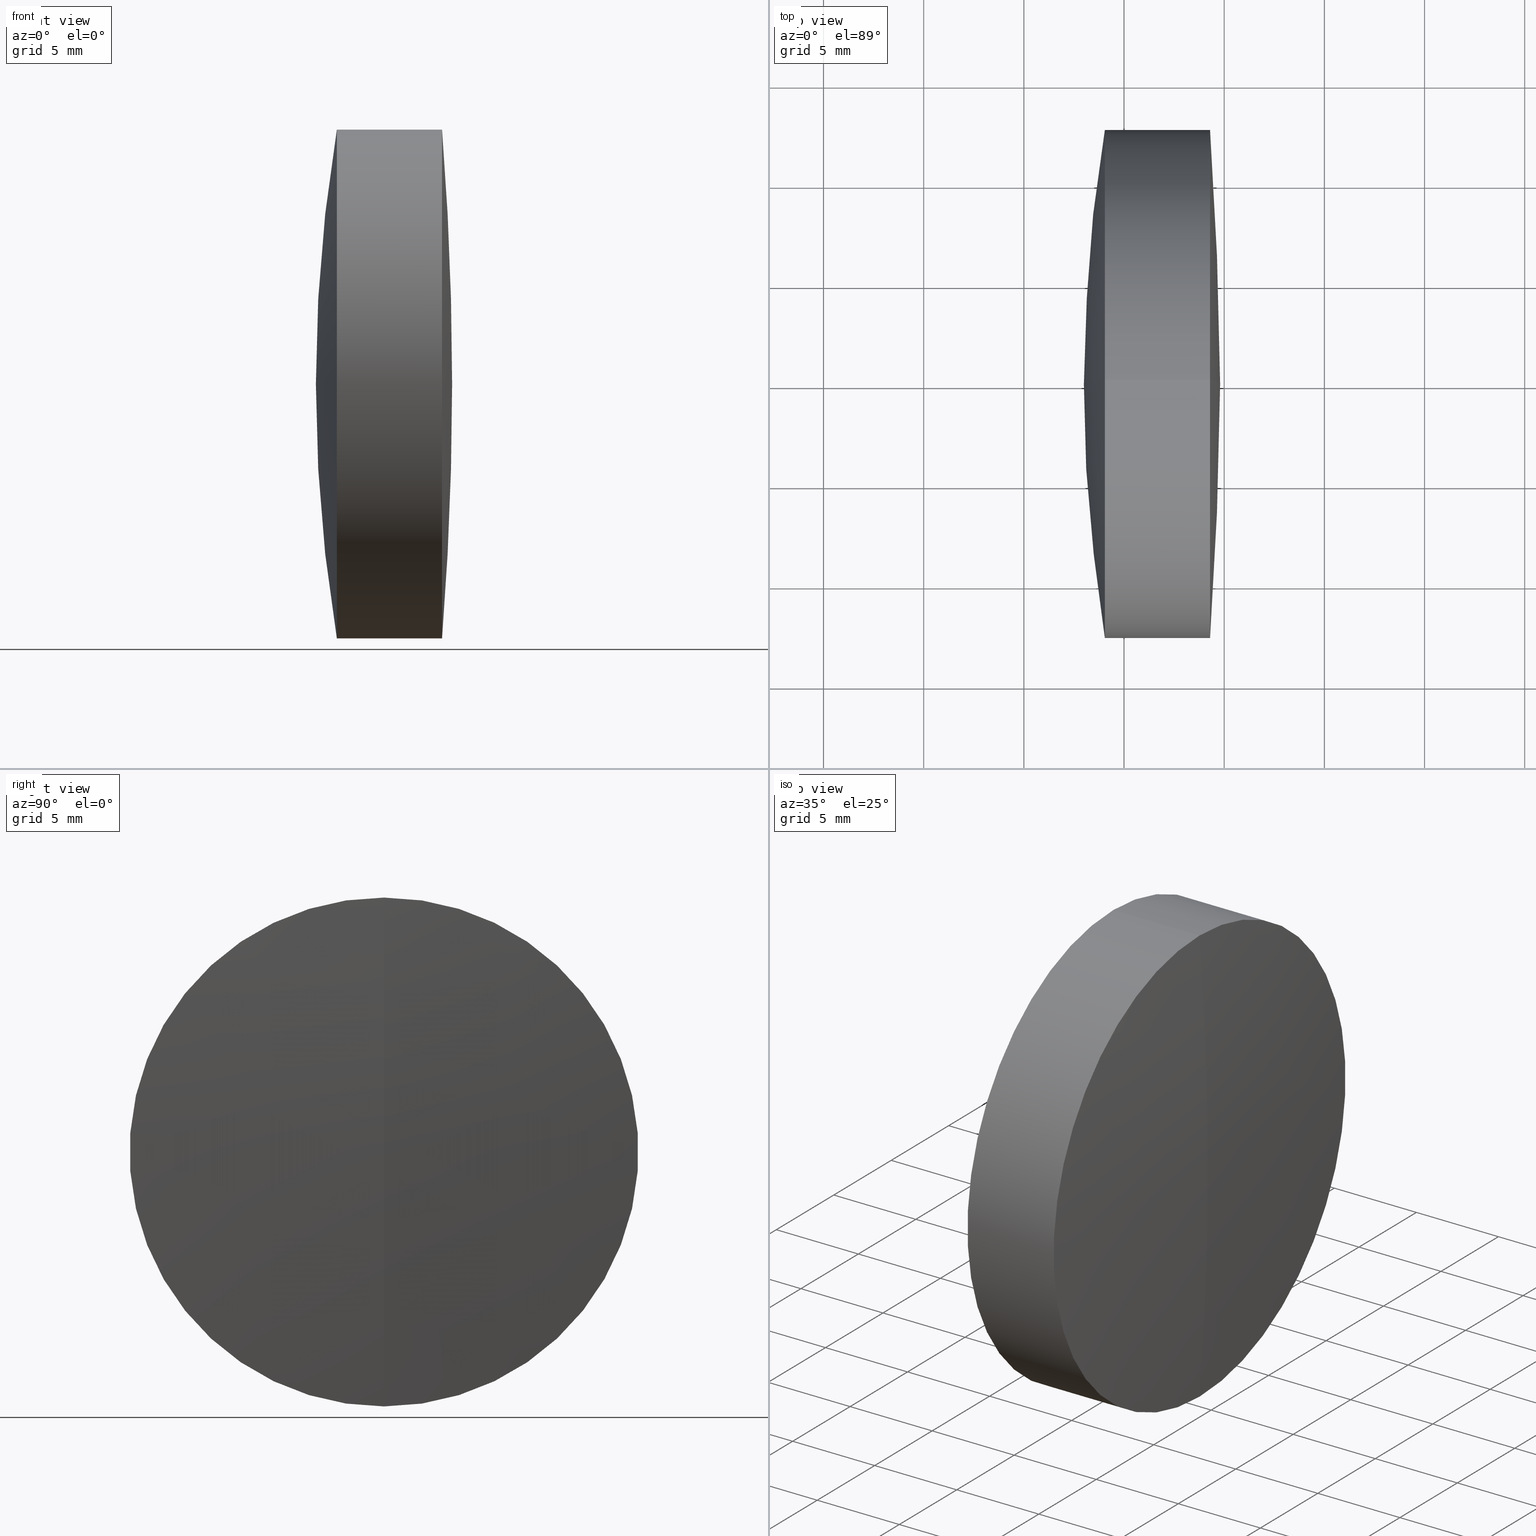
[diagram: canonical four-view strip — front | top / right | iso, engineering-drawing reading convention]
A machine part, canonical four-view strip (front | top / right | iso — engineering-drawing reading convention). The complete STEP part file that produces these views, byte-faithful:
ISO-10303-21;
HEADER;
FILE_DESCRIPTION (( 'STEP AP214' ),
    '1' );
FILE_NAME ('145059.STEP',
    '2019-05-14T03:18:45',
    ( 'user' ),
    ( '΢���й�' ),
    'SwSTEP 2.0',
    'SolidWorks 2016',
    '' );
FILE_SCHEMA (( 'AUTOMOTIVE_DESIGN' ));
ENDSEC;

DATA;
#1 = CARTESIAN_POINT ( 'NONE',  ( 340.5958458084193700, 0.0000000000000000000, -4.289825097912383600E-015 ) ) ;
#2 = DIRECTION ( 'NONE',  ( 0.0000000000000000000, 0.0000000000000000000, 1.000000000000000000 ) ) ;
#3 = SURFACE_STYLE_FILL_AREA ( #310 ) ;
#4 = AXIS2_PLACEMENT_3D ( 'NONE', #15, #67, #40 ) ;
#5 = FACE_OUTER_BOUND ( 'NONE', #44, .T. ) ;
#6 = ORIENTED_EDGE ( 'NONE', *, *, #24, .F. ) ;
#7 = DIRECTION ( 'NONE',  ( -0.0000000000000000000, 1.000000000000000000, 1.224646799147353200E-016 ) ) ;
#8 = EDGE_CURVE ( 'NONE', #170, #106, #56, .T. ) ;
#9 = ORIENTED_EDGE ( 'NONE', *, *, #8, .T. ) ;
#10 = DIRECTION ( 'NONE',  ( -1.000000000000000000, -0.0000000000000000000, -0.0000000000000000000 ) ) ;
#11 = AXIS2_PLACEMENT_3D ( 'NONE', #72, #191, #298 ) ;
#12 = AXIS2_PLACEMENT_3D ( 'NONE', #262, #343, #104 ) ;
#13 = FACE_OUTER_BOUND ( 'NONE', #83, .T. ) ;
#14 = ADVANCED_FACE ( 'NONE', ( #329 ), #309, .T. ) ;
#15 = CARTESIAN_POINT ( 'NONE',  ( 108.9958458084194200, 0.0000000000000000000, 0.0000000000000000000 ) ) ;
#16 = VERTEX_POINT ( 'NONE', #345 ) ;
#17 = CARTESIAN_POINT ( 'NONE',  ( 269.2935376196242600, 1.555301434917136900E-015, -12.69999999999998200 ) ) ;
#18 = AXIS2_PLACEMENT_3D ( 'NONE', #101, #88, #173 ) ;
#19 = PRESENTATION_STYLE_ASSIGNMENT (( #206 ) ) ;
#20 = MANIFOLD_SOLID_BREP ( '��ת1', #270 ) ;
#21 = CARTESIAN_POINT ( 'NONE',  ( 211.0958458084194300, 0.0000000000000000000, -3.185954776904472300E-015 ) ) ;
#22 = DIRECTION ( 'NONE',  ( 1.000000000000000000, 0.0000000000000000000, 0.0000000000000000000 ) ) ;
#23 = CARTESIAN_POINT ( 'NONE',  ( 0.0000000000000000000, 0.0000000000000000000, 0.0000000000000000000 ) ) ;
#24 = EDGE_CURVE ( 'NONE', #108, #163, #144, .T. ) ;
#25 = PRODUCT_CONTEXT ( 'NONE', #181, 'mechanical' ) ;
#26 = VERTEX_POINT ( 'NONE', #282 ) ;
#27 = ORIENTED_EDGE ( 'NONE', *, *, #322, .T. ) ;
#28 = SPHERICAL_SURFACE ( 'NONE', #341, 55.90000000000000600 ) ;
#29 = AXIS2_PLACEMENT_3D ( 'NONE', #96, #193, #37 ) ;
#30 = SPHERICAL_SURFACE ( 'NONE', #223, 77.59999999999999400 ) ;
#31 =( LENGTH_UNIT ( ) NAMED_UNIT ( * ) SI_UNIT ( .MILLI., .METRE. ) );
#32 = CARTESIAN_POINT ( 'NONE',  ( 269.7958458084194100, 0.0000000000000000000, 9.846160265144721100E-015 ) ) ;
#33 = FILL_AREA_STYLE ('',( #292 ) ) ;
#34 = ORIENTED_EDGE ( 'NONE', *, *, #245, .F. ) ;
#35 =( NAMED_UNIT ( * ) PLANE_ANGLE_UNIT ( ) SI_UNIT ( $, .RADIAN. ) );
#36 = CIRCLE ( 'NONE', #162, 12.69999999999999600 ) ;
#37 = DIRECTION ( 'NONE',  ( 0.0000000000000000000, 0.0000000000000000000, -1.000000000000000000 ) ) ;
#38 = EDGE_CURVE ( 'NONE', #326, #16, #36, .T. ) ;
#39 = ADVANCED_FACE ( 'NONE', ( #252 ), #288, .F. ) ;
#40 = DIRECTION ( 'NONE',  ( 0.0000000000000000000, 0.0000000000000000000, 1.000000000000000000 ) ) ;
#41 = AXIS2_PLACEMENT_3D ( 'NONE', #111, #147, #276 ) ;
#42 = CARTESIAN_POINT ( 'NONE',  ( 340.5958458084193700, 0.0000000000000000000, -4.289825097912383600E-015 ) ) ;
#43 = CIRCLE ( 'NONE', #297, 12.69999999999999600 ) ;
#44 = EDGE_LOOP ( 'NONE', ( #188, #221, #34 ) ) ;
#45 = EDGE_CURVE ( 'NONE', #258, #163, #122, .T. ) ;
#46 = DIRECTION ( 'NONE',  ( 0.0000000000000000000, 0.0000000000000000000, 1.000000000000000000 ) ) ;
#47 = COLOUR_RGB ( '',1.000000000000000000, 1.000000000000000000, 1.000000000000000000 ) ;
#48 =( NAMED_UNIT ( * ) SI_UNIT ( $, .STERADIAN. ) SOLID_ANGLE_UNIT ( ) );
#49 = PRODUCT_RELATED_PRODUCT_CATEGORY ( 'part', '', ( #272 ) ) ;
#50 = DIRECTION ( 'NONE',  ( 0.0000000000000000000, 0.0000000000000000000, 1.000000000000000000 ) ) ;
#51 = APPLICATION_CONTEXT ( 'automotive_design' ) ;
#52 = SURFACE_SIDE_STYLE ('',( #251 ) ) ;
#53 = ORIENTED_EDGE ( 'NONE', *, *, #92, .T. ) ;
#54 = ORIENTED_EDGE ( 'NONE', *, *, #304, .T. ) ;
#55 = DIRECTION ( 'NONE',  ( 0.0000000000000000000, 0.0000000000000000000, 1.000000000000000000 ) ) ;
#56 = CIRCLE ( 'NONE', #268, 160.8000000000000400 ) ;
#57 = STYLED_ITEM ( 'NONE', ( #346 ), #165 ) ;
#58 = EDGE_CURVE ( 'NONE', #106, #326, #315, .T. ) ;
#59 = COLOUR_RGB ( '',1.000000000000000000, 1.000000000000000000, 1.000000000000000000 ) ;
#60 = DIRECTION ( 'NONE',  ( 0.0000000000000000000, 0.0000000000000000000, 1.000000000000000000 ) ) ;
#61 = ORIENTED_EDGE ( 'NONE', *, *, #38, .T. ) ;
#62 = PRODUCT_DEFINITION_SHAPE ( 'NONE', 'NONE',  #320 ) ;
#63 = CARTESIAN_POINT ( 'NONE',  ( 108.9958458084194200, 0.0000000000000000000, 0.0000000000000000000 ) ) ;
#64 = DIRECTION ( 'NONE',  ( 0.0000000000000000000, 0.0000000000000000000, -1.000000000000000000 ) ) ;
#65 = DIRECTION ( 'NONE',  ( 0.0000000000000000000, 1.000000000000000000, 0.0000000000000000000 ) ) ;
#66 =( GEOMETRIC_REPRESENTATION_CONTEXT ( 3 ) GLOBAL_UNCERTAINTY_ASSIGNED_CONTEXT ( ( #212 ) ) GLOBAL_UNIT_ASSIGNED_CONTEXT ( ( #316, #152, #107 ) ) REPRESENTATION_CONTEXT ( 'NONE', 'WORKASPACE' ) );
#67 = DIRECTION ( 'NONE',  ( 0.0000000000000000000, 1.000000000000000000, 0.0000000000000000000 ) ) ;
#68 = DIRECTION ( 'NONE',  ( 0.0000000000000000000, 0.0000000000000000000, 1.000000000000000000 ) ) ;
#69 = CIRCLE ( 'NONE', #299, 12.69999999999999600 ) ;
#70 = ORIENTED_EDGE ( 'NONE', *, *, #45, .T. ) ;
#71 = EDGE_LOOP ( 'NONE', ( #290, #70, #6 ) ) ;
#72 = CARTESIAN_POINT ( 'NONE',  ( 211.0958458084194300, 0.0000000000000000000, -3.185954776904472300E-015 ) ) ;
#73 = CARTESIAN_POINT ( 'NONE',  ( 265.5340676750454300, 0.0000000000000000000, 0.0000000000000000000 ) ) ;
#74 = EDGE_LOOP ( 'NONE', ( #318, #53, #184, #198 ) ) ;
#75 = DIRECTION ( 'NONE',  ( 0.0000000000000000000, 0.0000000000000000000, 1.000000000000000000 ) ) ;
#76 = VERTEX_POINT ( 'NONE', #17 ) ;
#77 = ORIENTED_EDGE ( 'NONE', *, *, #304, .F. ) ;
#78 = DIRECTION ( 'NONE',  ( 0.0000000000000000000, -1.224646799147353200E-016, 1.000000000000000000 ) ) ;
#79 = DIRECTION ( 'NONE',  ( -1.000000000000000000, -0.0000000000000000000, -0.0000000000000000000 ) ) ;
#80 = AXIS2_PLACEMENT_3D ( 'NONE', #338, #10, #126 ) ;
#81 = CIRCLE ( 'NONE', #285, 77.59999999999999400 ) ;
#82 = CIRCLE ( 'NONE', #205, 77.59999999999999400 ) ;
#83 = EDGE_LOOP ( 'NONE', ( #266, #114, #207, #255 ) ) ;
#84 = AXIS2_PLACEMENT_3D ( 'NONE', #63, #7, #86 ) ;
#85 = ORIENTED_EDGE ( 'NONE', *, *, #45, .F. ) ;
#86 = DIRECTION ( 'NONE',  ( 0.0000000000000000000, -1.224646799147353000E-016, 1.000000000000000000 ) ) ;
#87 = SURFACE_STYLE_USAGE ( .BOTH. , #203 ) ;
#88 = DIRECTION ( 'NONE',  ( -1.000000000000000000, -0.0000000000000000000, -0.0000000000000000000 ) ) ;
#89 = UNCERTAINTY_MEASURE_WITH_UNIT (LENGTH_MEASURE( 1.000000000000000100E-005 ), #31, 'distance_accuracy_value', 'NONE');
#90 = CIRCLE ( 'NONE', #283, 55.90000000000000600 ) ;
#91 = DIRECTION ( 'NONE',  ( 0.0000000000000000000, 0.0000000000000000000, 1.000000000000000000 ) ) ;
#92 = EDGE_CURVE ( 'NONE', #76, #16, #240, .T. ) ;
#93 = SPHERICAL_SURFACE ( 'NONE', #4, 160.8000000000000400 ) ;
#94 = APPLICATION_PROTOCOL_DEFINITION ( 'draft international standard', 'automotive_design', 1998, #51 ) ;
#95 = ADVANCED_FACE ( 'NONE', ( #13 ), #148, .T. ) ;
#96 = CARTESIAN_POINT ( 'NONE',  ( 211.0958458084194300, 0.0000000000000000000, -3.185954776904472300E-015 ) ) ;
#97 = ADVANCED_FACE ( 'NONE', ( #308 ), #323, .T. ) ;
#98 = CARTESIAN_POINT ( 'NONE',  ( 265.5340676750454300, 0.0000000000000000000, 0.0000000000000000000 ) ) ;
#99 = ORIENTED_EDGE ( 'NONE', *, *, #157, .F. ) ;
#100 = PRODUCT_DEFINITION_CONTEXT ( 'detailed design', #51, 'design' ) ;
#101 = CARTESIAN_POINT ( 'NONE',  ( 265.5340676750454300, 0.0000000000000000000, 0.0000000000000000000 ) ) ;
#102 = DIRECTION ( 'NONE',  ( -1.000000000000000000, -0.0000000000000000000, -0.0000000000000000000 ) ) ;
#103 = CARTESIAN_POINT ( 'NONE',  ( 108.9958458084194200, 0.0000000000000000000, 0.0000000000000000000 ) ) ;
#104 = DIRECTION ( 'NONE',  ( 0.0000000000000000000, 0.0000000000000000000, 1.000000000000000000 ) ) ;
#105 = DIRECTION ( 'NONE',  ( -1.000000000000000000, -0.0000000000000000000, -0.0000000000000000000 ) ) ;
#106 = VERTEX_POINT ( 'NONE', #197 ) ;
#107 =( NAMED_UNIT ( * ) SI_UNIT ( $, .STERADIAN. ) SOLID_ANGLE_UNIT ( ) );
#108 = VERTEX_POINT ( 'NONE', #177 ) ;
#109 =( LENGTH_UNIT ( ) NAMED_UNIT ( * ) SI_UNIT ( .MILLI., .METRE. ) );
#110 = EDGE_CURVE ( 'NONE', #265, #174, #43, .T. ) ;
#111 = CARTESIAN_POINT ( 'NONE',  ( 235.8074506907544200, 0.0000000000000000000, 0.0000000000000000000 ) ) ;
#112 = CIRCLE ( 'NONE', #199, 12.69999999999999600 ) ;
#113 = FACE_OUTER_BOUND ( 'NONE', #131, .T. ) ;
#114 = ORIENTED_EDGE ( 'NONE', *, *, #287, .T. ) ;
#115 = AXIS2_PLACEMENT_3D ( 'NONE', #281, #79, #2 ) ;
#116 = ADVANCED_FACE ( 'NONE', ( #229 ), #180, .T. ) ;
#117 = DIRECTION ( 'NONE',  ( -1.000000000000000000, -0.0000000000000000000, -0.0000000000000000000 ) ) ;
#118 = ORIENTED_EDGE ( 'NONE', *, *, #209, .T. ) ;
#119 = ADVANCED_FACE ( 'NONE', ( #337 ), #139, .T. ) ;
#120 = CARTESIAN_POINT ( 'NONE',  ( 235.8074506907544200, 1.555301434917138000E-015, -12.69999999999999600 ) ) ;
#121 = CARTESIAN_POINT ( 'NONE',  ( 211.0958458084194300, 0.0000000000000000000, -3.185954776904472300E-015 ) ) ;
#122 = CIRCLE ( 'NONE', #137, 55.90000000000000600 ) ;
#123 = FILL_AREA_STYLE_COLOUR ( '', #59 ) ;
#124 =( NAMED_UNIT ( * ) SI_UNIT ( $, .STERADIAN. ) SOLID_ANGLE_UNIT ( ) );
#125 = MECHANICAL_DESIGN_GEOMETRIC_PRESENTATION_REPRESENTATION (  '', ( #57 ), #273 ) ;
#126 = DIRECTION ( 'NONE',  ( 0.0000000000000000000, 0.0000000000000000000, 1.000000000000000000 ) ) ;
#127 = DIRECTION ( 'NONE',  ( -1.000000000000000000, -0.0000000000000000000, -0.0000000000000000000 ) ) ;
#128 = FACE_OUTER_BOUND ( 'NONE', #218, .T. ) ;
#129 = DIRECTION ( 'NONE',  ( 0.0000000000000000000, 1.000000000000000000, 0.0000000000000000000 ) ) ;
#130 = ORIENTED_EDGE ( 'NONE', *, *, #169, .F. ) ;
#131 = EDGE_LOOP ( 'NONE', ( #176, #141, #335, #250 ) ) ;
#132 = DIRECTION ( 'NONE',  ( 0.0000000000000000000, 1.000000000000000000, 0.0000000000000000000 ) ) ;
#133 = PRESENTATION_LAYER_ASSIGNMENT (  '', '', ( #275 ) ) ;
#134 = ADVANCED_BREP_SHAPE_REPRESENTATION ( '145059', ( #20, #165, #211 ), #247 ) ;
#135 = CARTESIAN_POINT ( 'NONE',  ( 264.0421391705302200, 0.0000000000000000000, 12.69999999999998900 ) ) ;
#136 = EDGE_CURVE ( 'NONE', #174, #265, #112, .T. ) ;
#137 = AXIS2_PLACEMENT_3D ( 'NONE', #21, #156, #78 ) ;
#138 = SPHERICAL_SURFACE ( 'NONE', #186, 55.90000000000000600 ) ;
#139 = CYLINDRICAL_SURFACE ( 'NONE', #12, 12.69999999999998900 ) ;
#140 = CYLINDRICAL_SURFACE ( 'NONE', #41, 12.69999999999999600 ) ;
#141 = ORIENTED_EDGE ( 'NONE', *, *, #317, .T. ) ;
#142 = ORIENTED_EDGE ( 'NONE', *, *, #92, .F. ) ;
#143 = ADVANCED_FACE ( 'NONE', ( #159 ), #321, .T. ) ;
#144 = CIRCLE ( 'NONE', #18, 12.69999999999999600 ) ;
#145 = ORIENTED_EDGE ( 'NONE', *, *, #322, .F. ) ;
#146 = SURFACE_STYLE_USAGE ( .BOTH. , #339 ) ;
#147 = DIRECTION ( 'NONE',  ( -1.000000000000000000, -0.0000000000000000000, -0.0000000000000000000 ) ) ;
#148 = CYLINDRICAL_SURFACE ( 'NONE', #236, 12.69999999999999600 ) ;
#149 = UNCERTAINTY_MEASURE_WITH_UNIT (LENGTH_MEASURE( 1.000000000000000100E-005 ), #109, 'distance_accuracy_value', 'NONE');
#150 = CARTESIAN_POINT ( 'NONE',  ( 265.5340676750454300, 0.0000000000000000000, 0.0000000000000000000 ) ) ;
#151 = EDGE_CURVE ( 'NONE', #108, #174, #222, .T. ) ;
#152 =( NAMED_UNIT ( * ) PLANE_ANGLE_UNIT ( ) SI_UNIT ( $, .RADIAN. ) );
#153 = CIRCLE ( 'NONE', #29, 55.90000000000000600 ) ;
#154 = ORIENTED_EDGE ( 'NONE', *, *, #58, .T. ) ;
#155 = ORIENTED_EDGE ( 'NONE', *, *, #260, .F. ) ;
#156 = DIRECTION ( 'NONE',  ( -0.0000000000000000000, 1.000000000000000000, 1.224646799147353200E-016 ) ) ;
#157 = EDGE_CURVE ( 'NONE', #265, #277, #81, .T. ) ;
#158 = DIRECTION ( 'NONE',  ( 0.0000000000000000000, 0.0000000000000000000, 1.000000000000000000 ) ) ;
#159 = FACE_OUTER_BOUND ( 'NONE', #274, .T. ) ;
#160 = VECTOR ( 'NONE', #264, 1000.000000000000000 ) ;
#161 = ORIENTED_EDGE ( 'NONE', *, *, #260, .T. ) ;
#162 = AXIS2_PLACEMENT_3D ( 'NONE', #150, #127, #234 ) ;
#163 = VERTEX_POINT ( 'NONE', #213 ) ;
#164 = CARTESIAN_POINT ( 'NONE',  ( 265.5340676750454300, 0.0000000000000000000, 12.69999999999999900 ) ) ;
#165 = MANIFOLD_SOLID_BREP ( '��ת3', #208 ) ;
#166 = CIRCLE ( 'NONE', #84, 160.8000000000000400 ) ;
#167 = CIRCLE ( 'NONE', #333, 12.69999999999999600 ) ;
#168 = DIRECTION ( 'NONE',  ( 0.0000000000000000000, -1.224646799147353000E-016, 1.000000000000000000 ) ) ;
#169 = EDGE_CURVE ( 'NONE', #170, #76, #166, .T. ) ;
#170 = VERTEX_POINT ( 'NONE', #32 ) ;
#171 = MECHANICAL_DESIGN_GEOMETRIC_PRESENTATION_REPRESENTATION (  '', ( #275 ), #66 ) ;
#172 = ORIENTED_EDGE ( 'NONE', *, *, #245, .T. ) ;
#173 = DIRECTION ( 'NONE',  ( 0.0000000000000000000, 0.0000000000000000000, 1.000000000000000000 ) ) ;
#174 = VERTEX_POINT ( 'NONE', #135 ) ;
#175 = AXIS2_PLACEMENT_3D ( 'NONE', #189, #291, #314 ) ;
#176 = ORIENTED_EDGE ( 'NONE', *, *, #24, .T. ) ;
#177 = CARTESIAN_POINT ( 'NONE',  ( 265.5340676750454300, 0.0000000000000000000, 12.69999999999999600 ) ) ;
#178 = CARTESIAN_POINT ( 'NONE',  ( -0.5519199926577972300, 0.0000000000000000000, 12.69999999999998900 ) ) ;
#179 = FILL_AREA_STYLE ('',( #123 ) ) ;
#180 = CYLINDRICAL_SURFACE ( 'NONE', #80, 12.69999999999998900 ) ;
#181 = APPLICATION_CONTEXT ( 'automotive_design' ) ;
#182 = ORIENTED_EDGE ( 'NONE', *, *, #8, .F. ) ;
#183 = CARTESIAN_POINT ( 'NONE',  ( 235.8074506907544200, 0.0000000000000000000, 12.69999999999999600 ) ) ;
#184 = ORIENTED_EDGE ( 'NONE', *, *, #38, .F. ) ;
#185 = CARTESIAN_POINT ( 'NONE',  ( 269.2935376196242600, 0.0000000000000000000, 0.0000000000000000000 ) ) ;
#186 = AXIS2_PLACEMENT_3D ( 'NONE', #215, #129, #68 ) ;
#187 = DIRECTION ( 'NONE',  ( 0.0000000000000000000, 0.0000000000000000000, 1.000000000000000000 ) ) ;
#188 = ORIENTED_EDGE ( 'NONE', *, *, #136, .T. ) ;
#189 = CARTESIAN_POINT ( 'NONE',  ( 108.9958458084194200, 0.0000000000000000000, 0.0000000000000000000 ) ) ;
#190 = EDGE_CURVE ( 'NONE', #258, #108, #153, .T. ) ;
#191 = DIRECTION ( 'NONE',  ( -0.0000000000000000000, 1.000000000000000000, 1.224646799147353200E-016 ) ) ;
#192 = PRESENTATION_LAYER_ASSIGNMENT (  '', '', ( #279 ) ) ;
#193 = DIRECTION ( 'NONE',  ( 0.0000000000000000000, -1.000000000000000000, 0.0000000000000000000 ) ) ;
#194 = ADVANCED_FACE ( 'NONE', ( #113 ), #140, .T. ) ;
#195 = CARTESIAN_POINT ( 'NONE',  ( 262.9958458084194000, 0.0000000000000000000, 4.618044827793462100E-016 ) ) ;
#196 = PRESENTATION_STYLE_ASSIGNMENT (( #146 ) ) ;
#197 = CARTESIAN_POINT ( 'NONE',  ( 269.2935376196242600, 0.0000000000000000000, 12.69999999999998200 ) ) ;
#198 = ORIENTED_EDGE ( 'NONE', *, *, #58, .F. ) ;
#199 = AXIS2_PLACEMENT_3D ( 'NONE', #271, #307, #187 ) ;
#200 = EDGE_LOOP ( 'NONE', ( #77, #27, #61 ) ) ;
#201 = CARTESIAN_POINT ( 'NONE',  ( 266.9958458084194000, 0.0000000000000000000, 2.369330267123802000E-016 ) ) ;
#202 = DIRECTION ( 'NONE',  ( 0.0000000000000000000, 0.0000000000000000000, 1.000000000000000000 ) ) ;
#203 = SURFACE_SIDE_STYLE ('',( #3 ) ) ;
#204 = CARTESIAN_POINT ( 'NONE',  ( -0.5519199926577972300, 1.555301434917137200E-015, -12.69999999999998900 ) ) ;
#205 = AXIS2_PLACEMENT_3D ( 'NONE', #1, #334, #64 ) ;
#206 = SURFACE_STYLE_USAGE ( .BOTH. , #52 ) ;
#207 = ORIENTED_EDGE ( 'NONE', *, *, #151, .T. ) ;
#208 = CLOSED_SHELL ( 'NONE', ( #14, #119, #254, #39, #116, #303 ) ) ;
#209 = EDGE_CURVE ( 'NONE', #76, #106, #217, .T. ) ;
#210 = DIRECTION ( 'NONE',  ( 0.0000000000000000000, -1.000000000000000000, 0.0000000000000000000 ) ) ;
#211 = AXIS2_PLACEMENT_3D ( 'NONE', #23, #75, #22 ) ;
#212 = UNCERTAINTY_MEASURE_WITH_UNIT (LENGTH_MEASURE( 1.000000000000000100E-005 ), #316, 'distance_accuracy_value', 'NONE');
#213 = CARTESIAN_POINT ( 'NONE',  ( 265.5340676750454300, 1.555301434917138000E-015, -12.69999999999999600 ) ) ;
#214 = MECHANICAL_DESIGN_GEOMETRIC_PRESENTATION_REPRESENTATION (  '', ( #279 ), #243 ) ;
#215 = CARTESIAN_POINT ( 'NONE',  ( 211.0958458084194300, 0.0000000000000000000, -3.185954776904472300E-015 ) ) ;
#216 = DIRECTION ( 'NONE',  ( -0.0000000000000000000, 1.000000000000000000, 1.224646799147353200E-016 ) ) ;
#217 = CIRCLE ( 'NONE', #115, 12.69999999999998200 ) ;
#218 = EDGE_LOOP ( 'NONE', ( #145, #54, #161 ) ) ;
#219 =( NAMED_UNIT ( * ) SI_UNIT ( $, .STERADIAN. ) SOLID_ANGLE_UNIT ( ) );
#220 = DIRECTION ( 'NONE',  ( 0.0000000000000000000, 1.000000000000000000, 0.0000000000000000000 ) ) ;
#221 = ORIENTED_EDGE ( 'NONE', *, *, #157, .T. ) ;
#222 = LINE ( 'NONE', #183, #344 ) ;
#223 = AXIS2_PLACEMENT_3D ( 'NONE', #295, #235, #55 ) ;
#224 = DIRECTION ( 'NONE',  ( -1.000000000000000000, -0.0000000000000000000, -0.0000000000000000000 ) ) ;
#225 = ADVANCED_FACE ( 'NONE', ( #5 ), #30, .T. ) ;
#226 = APPLICATION_PROTOCOL_DEFINITION ( 'draft international standard', 'automotive_design', 1998, #181 ) ;
#227 = VECTOR ( 'NONE', #325, 1000.000000000000000 ) ;
#228 = COLOUR_RGB ( '',1.000000000000000000, 1.000000000000000000, 1.000000000000000000 ) ;
#229 = FACE_OUTER_BOUND ( 'NONE', #340, .T. ) ;
#230 = CIRCLE ( 'NONE', #11, 55.90000000000000600 ) ;
#231 =( NAMED_UNIT ( * ) PLANE_ANGLE_UNIT ( ) SI_UNIT ( $, .RADIAN. ) );
#232 =( NAMED_UNIT ( * ) PLANE_ANGLE_UNIT ( ) SI_UNIT ( $, .RADIAN. ) );
#233 = AXIS2_PLACEMENT_3D ( 'NONE', #185, #117, #158 ) ;
#234 = DIRECTION ( 'NONE',  ( 0.0000000000000000000, 0.0000000000000000000, 1.000000000000000000 ) ) ;
#235 = DIRECTION ( 'NONE',  ( 0.0000000000000000000, 1.000000000000000000, 0.0000000000000000000 ) ) ;
#236 = AXIS2_PLACEMENT_3D ( 'NONE', #336, #105, #46 ) ;
#237 = LINE ( 'NONE', #120, #160 ) ;
#238 = EDGE_LOOP ( 'NONE', ( #130, #9, #347 ) ) ;
#239 = CARTESIAN_POINT ( 'NONE',  ( 211.0958458084194300, 0.0000000000000000000, -3.185954776904472300E-015 ) ) ;
#240 = LINE ( 'NONE', #204, #227 ) ;
#241 = FACE_OUTER_BOUND ( 'NONE', #71, .T. ) ;
#242 = UNCERTAINTY_MEASURE_WITH_UNIT (LENGTH_MEASURE( 1.000000000000000100E-005 ), #249, 'distance_accuracy_value', 'NONE');
#243 =( GEOMETRIC_REPRESENTATION_CONTEXT ( 3 ) GLOBAL_UNCERTAINTY_ASSIGNED_CONTEXT ( ( #242 ) ) GLOBAL_UNIT_ASSIGNED_CONTEXT ( ( #249, #232, #48 ) ) REPRESENTATION_CONTEXT ( 'NONE', 'WORKASPACE' ) );
#244 = CARTESIAN_POINT ( 'NONE',  ( 340.5958458084193700, 0.0000000000000000000, -4.289825097912383600E-015 ) ) ;
#245 = EDGE_CURVE ( 'NONE', #174, #277, #82, .T. ) ;
#246 = DIRECTION ( 'NONE',  ( 0.0000000000000000000, 0.0000000000000000000, -1.000000000000000000 ) ) ;
#247 =( GEOMETRIC_REPRESENTATION_CONTEXT ( 3 ) GLOBAL_UNCERTAINTY_ASSIGNED_CONTEXT ( ( #149 ) ) GLOBAL_UNIT_ASSIGNED_CONTEXT ( ( #109, #35, #219 ) ) REPRESENTATION_CONTEXT ( 'NONE', 'WORKASPACE' ) );
#248 = SURFACE_STYLE_FILL_AREA ( #179 ) ;
#249 =( LENGTH_UNIT ( ) NAMED_UNIT ( * ) SI_UNIT ( .MILLI., .METRE. ) );
#250 = ORIENTED_EDGE ( 'NONE', *, *, #151, .F. ) ;
#251 = SURFACE_STYLE_FILL_AREA ( #33 ) ;
#252 = FACE_OUTER_BOUND ( 'NONE', #200, .T. ) ;
#253 = EDGE_CURVE ( 'NONE', #106, #76, #302, .T. ) ;
#254 = ADVANCED_FACE ( 'NONE', ( #128 ), #28, .F. ) ;
#255 = ORIENTED_EDGE ( 'NONE', *, *, #110, .F. ) ;
#256 = CARTESIAN_POINT ( 'NONE',  ( 264.0421391705302200, 1.555301434917137400E-015, -12.69999999999999200 ) ) ;
#257 = CARTESIAN_POINT ( 'NONE',  ( 264.0421391705302200, 0.0000000000000000000, 0.0000000000000000000 ) ) ;
#258 = VERTEX_POINT ( 'NONE', #201 ) ;
#259 = DIRECTION ( 'NONE',  ( -1.000000000000000000, -0.0000000000000000000, -0.0000000000000000000 ) ) ;
#260 = EDGE_CURVE ( 'NONE', #16, #326, #167, .T. ) ;
#261 = DIRECTION ( 'NONE',  ( -1.000000000000000000, -0.0000000000000000000, -0.0000000000000000000 ) ) ;
#262 = CARTESIAN_POINT ( 'NONE',  ( -0.5519199926577972300, 0.0000000000000000000, 0.0000000000000000000 ) ) ;
#263 = EDGE_LOOP ( 'NONE', ( #85, #280, #294 ) ) ;
#264 = DIRECTION ( 'NONE',  ( -1.000000000000000000, -0.0000000000000000000, -0.0000000000000000000 ) ) ;
#265 = VERTEX_POINT ( 'NONE', #256 ) ;
#266 = ORIENTED_EDGE ( 'NONE', *, *, #317, .F. ) ;
#267 = SHAPE_DEFINITION_REPRESENTATION ( #62, #134 ) ;
#268 = AXIS2_PLACEMENT_3D ( 'NONE', #103, #210, #312 ) ;
#269 = CARTESIAN_POINT ( 'NONE',  ( 211.0958458084194300, 0.0000000000000000000, -3.185954776904472300E-015 ) ) ;
#270 = CLOSED_SHELL ( 'NONE', ( #332, #194, #225, #143, #95, #97 ) ) ;
#271 = CARTESIAN_POINT ( 'NONE',  ( 264.0421391705302200, 0.0000000000000000000, 0.0000000000000000000 ) ) ;
#272 = PRODUCT ( '145059', '145059', '', ( #25 ) ) ;
#273 =( GEOMETRIC_REPRESENTATION_CONTEXT ( 3 ) GLOBAL_UNCERTAINTY_ASSIGNED_CONTEXT ( ( #89 ) ) GLOBAL_UNIT_ASSIGNED_CONTEXT ( ( #31, #231, #124 ) ) REPRESENTATION_CONTEXT ( 'NONE', 'WORKASPACE' ) );
#274 = EDGE_LOOP ( 'NONE', ( #99, #286, #172 ) ) ;
#275 = STYLED_ITEM ( 'NONE', ( #19 ), #134 ) ;
#276 = DIRECTION ( 'NONE',  ( 0.0000000000000000000, 0.0000000000000000000, 1.000000000000000000 ) ) ;
#277 = VERTEX_POINT ( 'NONE', #195 ) ;
#278 = DIRECTION ( 'NONE',  ( 0.0000000000000000000, 1.000000000000000000, 0.0000000000000000000 ) ) ;
#279 = STYLED_ITEM ( 'NONE', ( #196 ), #20 ) ;
#280 = ORIENTED_EDGE ( 'NONE', *, *, #190, .T. ) ;
#281 = CARTESIAN_POINT ( 'NONE',  ( 269.2935376196242600, 0.0000000000000000000, 0.0000000000000000000 ) ) ;
#282 = CARTESIAN_POINT ( 'NONE',  ( 266.9958458084194000, 0.0000000000000000000, 2.369330267123802000E-016 ) ) ;
#283 = AXIS2_PLACEMENT_3D ( 'NONE', #269, #296, #246 ) ;
#284 = DIRECTION ( 'NONE',  ( 0.0000000000000000000, 0.0000000000000000000, 1.000000000000000000 ) ) ;
#285 = AXIS2_PLACEMENT_3D ( 'NONE', #244, #216, #168 ) ;
#286 = ORIENTED_EDGE ( 'NONE', *, *, #110, .T. ) ;
#287 = EDGE_CURVE ( 'NONE', #163, #108, #69, .T. ) ;
#288 = SPHERICAL_SURFACE ( 'NONE', #327, 55.90000000000000600 ) ;
#289 = ORIENTED_EDGE ( 'NONE', *, *, #253, .F. ) ;
#290 = ORIENTED_EDGE ( 'NONE', *, *, #190, .F. ) ;
#291 = DIRECTION ( 'NONE',  ( 0.0000000000000000000, 1.000000000000000000, 0.0000000000000000000 ) ) ;
#292 = FILL_AREA_STYLE_COLOUR ( '', #47 ) ;
#293 = FACE_OUTER_BOUND ( 'NONE', #238, .T. ) ;
#294 = ORIENTED_EDGE ( 'NONE', *, *, #287, .F. ) ;
#295 = CARTESIAN_POINT ( 'NONE',  ( 340.5958458084193700, 0.0000000000000000000, -4.289825097912383600E-015 ) ) ;
#296 = DIRECTION ( 'NONE',  ( 0.0000000000000000000, -1.000000000000000000, 0.0000000000000000000 ) ) ;
#297 = AXIS2_PLACEMENT_3D ( 'NONE', #257, #259, #50 ) ;
#298 = DIRECTION ( 'NONE',  ( 0.0000000000000000000, -1.224646799147353200E-016, 1.000000000000000000 ) ) ;
#299 = AXIS2_PLACEMENT_3D ( 'NONE', #73, #102, #91 ) ;
#300 = VECTOR ( 'NONE', #319, 1000.000000000000000 ) ;
#301 = PRESENTATION_LAYER_ASSIGNMENT (  '', '', ( #57 ) ) ;
#302 = CIRCLE ( 'NONE', #233, 12.69999999999998200 ) ;
#303 = ADVANCED_FACE ( 'NONE', ( #293 ), #93, .T. ) ;
#304 = EDGE_CURVE ( 'NONE', #26, #16, #230, .T. ) ;
#305 = CARTESIAN_POINT ( 'NONE',  ( 211.0958458084194300, 0.0000000000000000000, -3.185954776904472300E-015 ) ) ;
#306 = AXIS2_PLACEMENT_3D ( 'NONE', #305, #132, #284 ) ;
#307 = DIRECTION ( 'NONE',  ( -1.000000000000000000, -0.0000000000000000000, -0.0000000000000000000 ) ) ;
#308 = FACE_OUTER_BOUND ( 'NONE', #263, .T. ) ;
#309 = SPHERICAL_SURFACE ( 'NONE', #175, 160.8000000000000400 ) ;
#310 = FILL_AREA_STYLE ('',( #328 ) ) ;
#311 = ORIENTED_EDGE ( 'NONE', *, *, #169, .T. ) ;
#312 = DIRECTION ( 'NONE',  ( 0.0000000000000000000, 0.0000000000000000000, -1.000000000000000000 ) ) ;
#313 = AXIS2_PLACEMENT_3D ( 'NONE', #42, #220, #342 ) ;
#314 = DIRECTION ( 'NONE',  ( 0.0000000000000000000, 0.0000000000000000000, 1.000000000000000000 ) ) ;
#315 = LINE ( 'NONE', #178, #300 ) ;
#316 =( LENGTH_UNIT ( ) NAMED_UNIT ( * ) SI_UNIT ( .MILLI., .METRE. ) );
#317 = EDGE_CURVE ( 'NONE', #163, #265, #237, .T. ) ;
#318 = ORIENTED_EDGE ( 'NONE', *, *, #253, .T. ) ;
#319 = DIRECTION ( 'NONE',  ( -1.000000000000000000, -0.0000000000000000000, -0.0000000000000000000 ) ) ;
#320 = PRODUCT_DEFINITION ( 'δ֪', '', #324, #100 ) ;
#321 = SPHERICAL_SURFACE ( 'NONE', #313, 77.59999999999999400 ) ;
#322 = EDGE_CURVE ( 'NONE', #26, #326, #90, .T. ) ;
#323 = SPHERICAL_SURFACE ( 'NONE', #306, 55.90000000000000600 ) ;
#324 = PRODUCT_DEFINITION_FORMATION_WITH_SPECIFIED_SOURCE ( '�κ�', '', #272, .NOT_KNOWN. ) ;
#325 = DIRECTION ( 'NONE',  ( -1.000000000000000000, -0.0000000000000000000, -0.0000000000000000000 ) ) ;
#326 = VERTEX_POINT ( 'NONE', #164 ) ;
#327 = AXIS2_PLACEMENT_3D ( 'NONE', #239, #278, #202 ) ;
#328 = FILL_AREA_STYLE_COLOUR ( '', #228 ) ;
#329 = FACE_OUTER_BOUND ( 'NONE', #331, .T. ) ;
#330 = DIRECTION ( 'NONE',  ( 0.0000000000000000000, 0.0000000000000000000, 1.000000000000000000 ) ) ;
#331 = EDGE_LOOP ( 'NONE', ( #182, #311, #289 ) ) ;
#332 = ADVANCED_FACE ( 'NONE', ( #241 ), #138, .T. ) ;
#333 = AXIS2_PLACEMENT_3D ( 'NONE', #98, #224, #60 ) ;
#334 = DIRECTION ( 'NONE',  ( 0.0000000000000000000, -1.000000000000000000, 0.0000000000000000000 ) ) ;
#335 = ORIENTED_EDGE ( 'NONE', *, *, #136, .F. ) ;
#336 = CARTESIAN_POINT ( 'NONE',  ( 235.8074506907544200, 0.0000000000000000000, 0.0000000000000000000 ) ) ;
#337 = FACE_OUTER_BOUND ( 'NONE', #74, .T. ) ;
#338 = CARTESIAN_POINT ( 'NONE',  ( -0.5519199926577972300, 0.0000000000000000000, 0.0000000000000000000 ) ) ;
#339 = SURFACE_SIDE_STYLE ('',( #248 ) ) ;
#340 = EDGE_LOOP ( 'NONE', ( #142, #118, #154, #155 ) ) ;
#341 = AXIS2_PLACEMENT_3D ( 'NONE', #121, #65, #330 ) ;
#342 = DIRECTION ( 'NONE',  ( 0.0000000000000000000, 0.0000000000000000000, 1.000000000000000000 ) ) ;
#343 = DIRECTION ( 'NONE',  ( -1.000000000000000000, -0.0000000000000000000, -0.0000000000000000000 ) ) ;
#344 = VECTOR ( 'NONE', #261, 1000.000000000000000 ) ;
#345 = CARTESIAN_POINT ( 'NONE',  ( 265.5340676750454300, 1.555301434917138400E-015, -12.70000000000000300 ) ) ;
#346 = PRESENTATION_STYLE_ASSIGNMENT (( #87 ) ) ;
#347 = ORIENTED_EDGE ( 'NONE', *, *, #209, .F. ) ;
ENDSEC;
END-ISO-10303-21;
